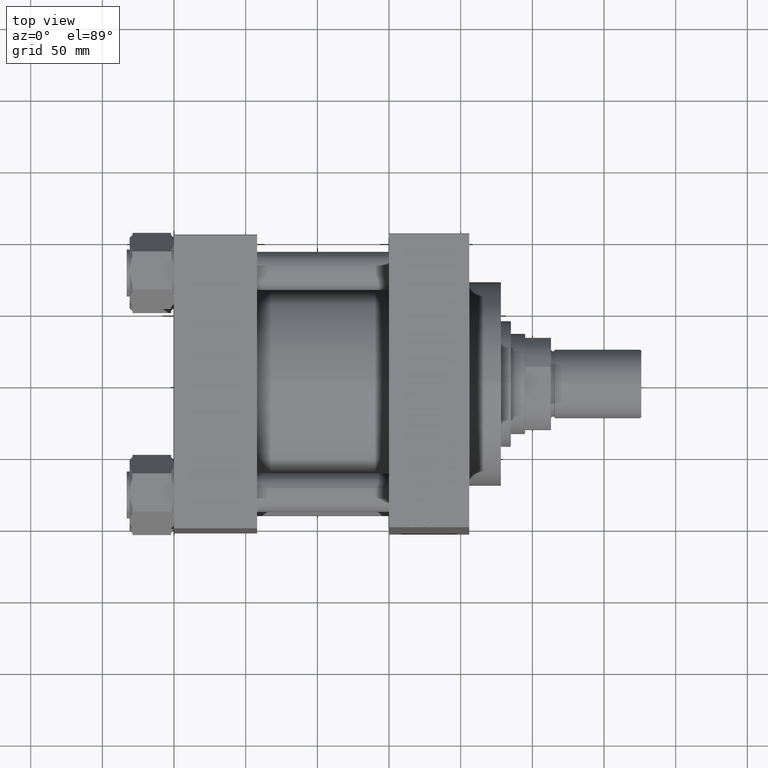
[diagram: clean part render]
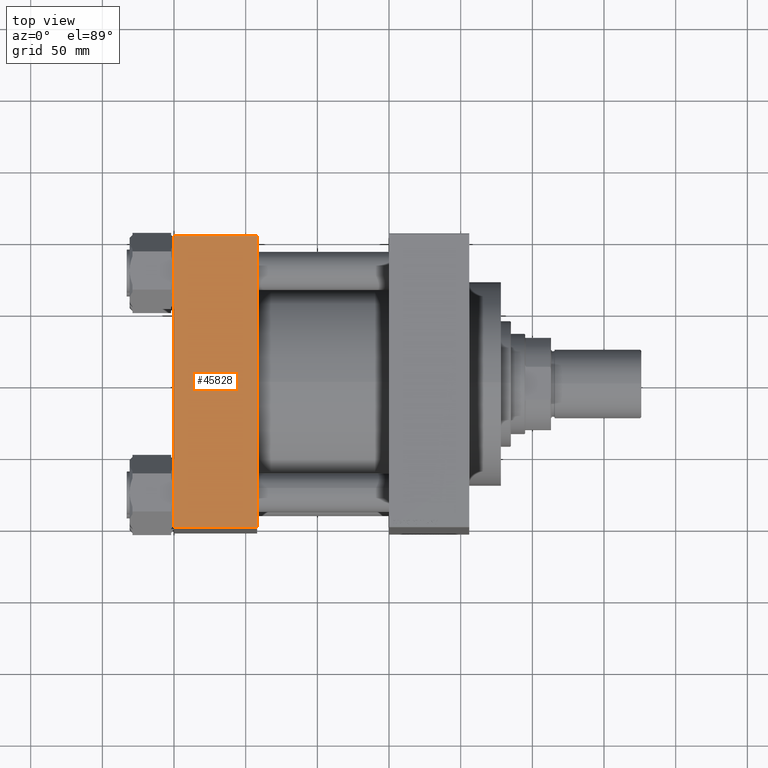
[diagram: same view with one face highlighted and labeled with its STEP entity id]
A machine part, top view. The second image highlights one B-rep face of the part: STEP entity #45828.
In plain terms, the highlighted planar face has unit normal (0, 0, -1).
Its self-contained STEP definition (entity closure, byte-faithful):
#881 = EDGE_CURVE ( 'NONE', #30506, #44976, #2790, .T. ) ;
#1138 = VERTEX_POINT ( 'NONE', #45132 ) ;
#2790 = LINE ( 'NONE', #17664, #23214 ) ;
#4914 = CARTESIAN_POINT ( 'NONE',  ( 58.00000000000000000, -101.9999999999999147, 102.5000000000000000 ) ) ;
#7093 = VECTOR ( 'NONE', #34432, 1000.000000000000000 ) ;
#8388 = CARTESIAN_POINT ( 'NONE',  ( 0.000000000000000000, 102.0000000000000142, 102.5000000000000284 ) ) ;
#14138 = EDGE_CURVE ( 'NONE', #1138, #30506, #22720, .T. ) ;
#14238 = CARTESIAN_POINT ( 'NONE',  ( 58.00000000000000000, 102.0000000000000142, 102.5000000000000284 ) ) ;
#15892 = CARTESIAN_POINT ( 'NONE',  ( 0.000000000000000000, 102.5000000000000284, 102.5000000000000284 ) ) ;
#16392 = EDGE_LOOP ( 'NONE', ( #45199, #35510, #34889, #20666 ) ) ;
#17664 = CARTESIAN_POINT ( 'NONE',  ( 58.00000000000000000, -101.9999999999999716, 102.5000000000000000 ) ) ;
#18108 = CARTESIAN_POINT ( 'NONE',  ( 58.00000000000000000, 102.5000000000000284, 102.5000000000000284 ) ) ;
#18341 = FACE_OUTER_BOUND ( 'NONE', #16392, .T. ) ;
#18828 = PLANE ( 'NONE',  #20227 ) ;
#20227 = AXIS2_PLACEMENT_3D ( 'NONE', #18108, #44606, #33658 ) ;
#20666 = ORIENTED_EDGE ( 'NONE', *, *, #44723, .T. ) ;
#22720 = LINE ( 'NONE', #15892, #27050 ) ;
#23214 = VECTOR ( 'NONE', #47337, 1000.000000000000000 ) ;
#23496 = LINE ( 'NONE', #8388, #7093 ) ;
#27050 = VECTOR ( 'NONE', #27107, 1000.000000000000000 ) ;
#27107 = DIRECTION ( 'NONE',  ( 0.000000000000000000, -1.000000000000000000, -1.353930517835556973E-16 ) ) ;
#27172 = VERTEX_POINT ( 'NONE', #14238 ) ;
#30506 = VERTEX_POINT ( 'NONE', #44557 ) ;
#32699 = VECTOR ( 'NONE', #34390, 1000.000000000000000 ) ;
#33000 = LINE ( 'NONE', #47824, #32699 ) ;
#33658 = DIRECTION ( 'NONE',  ( 0.000000000000000000, 1.000000000000000000, 1.353930517835556973E-16 ) ) ;
#34390 = DIRECTION ( 'NONE',  ( 0.000000000000000000, -1.000000000000000000, -1.353930517835556973E-16 ) ) ;
#34432 = DIRECTION ( 'NONE',  ( -1.000000000000000000, 0.000000000000000000, 0.000000000000000000 ) ) ;
#34889 = ORIENTED_EDGE ( 'NONE', *, *, #43358, .F. ) ;
#35510 = ORIENTED_EDGE ( 'NONE', *, *, #881, .T. ) ;
#43358 = EDGE_CURVE ( 'NONE', #27172, #44976, #33000, .T. ) ;
#44557 = CARTESIAN_POINT ( 'NONE',  ( 0.000000000000000000, -101.9999999999999147, 102.5000000000000000 ) ) ;
#44606 = DIRECTION ( 'NONE',  ( 0.000000000000000000, 1.353930517835556973E-16, -1.000000000000000000 ) ) ;
#44723 = EDGE_CURVE ( 'NONE', #27172, #1138, #23496, .T. ) ;
#44976 = VERTEX_POINT ( 'NONE', #4914 ) ;
#45132 = CARTESIAN_POINT ( 'NONE',  ( 0.000000000000000000, 102.0000000000000142, 102.5000000000000284 ) ) ;
#45199 = ORIENTED_EDGE ( 'NONE', *, *, #14138, .T. ) ;
#45828 = ADVANCED_FACE ( 'NONE', ( #18341 ), #18828, .F. ) ;
#47337 = DIRECTION ( 'NONE',  ( 1.000000000000000000, 0.000000000000000000, 0.000000000000000000 ) ) ;
#47824 = CARTESIAN_POINT ( 'NONE',  ( 58.00000000000000000, 102.5000000000000284, 102.5000000000000284 ) ) ;